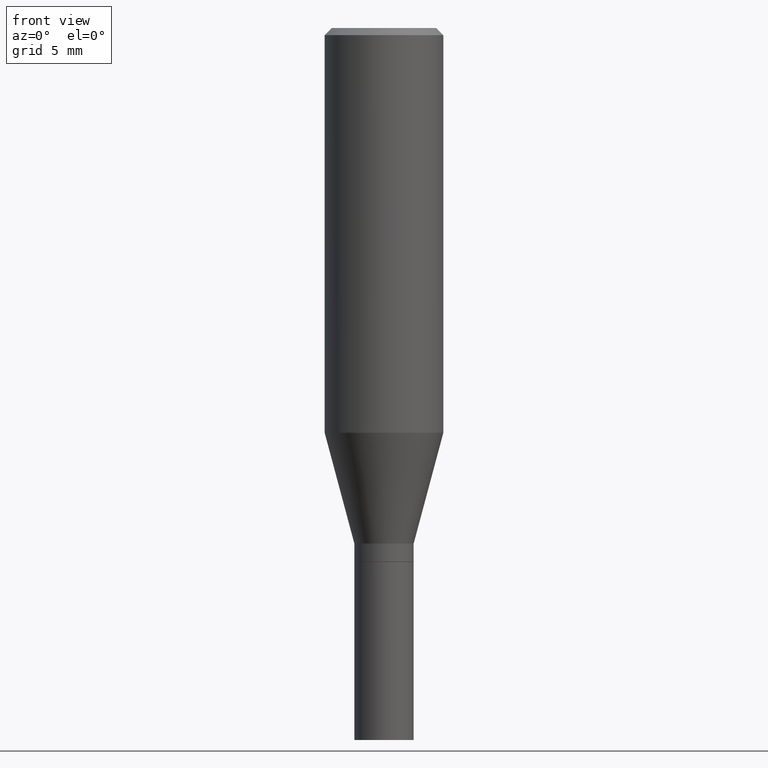
[diagram: clean part render]
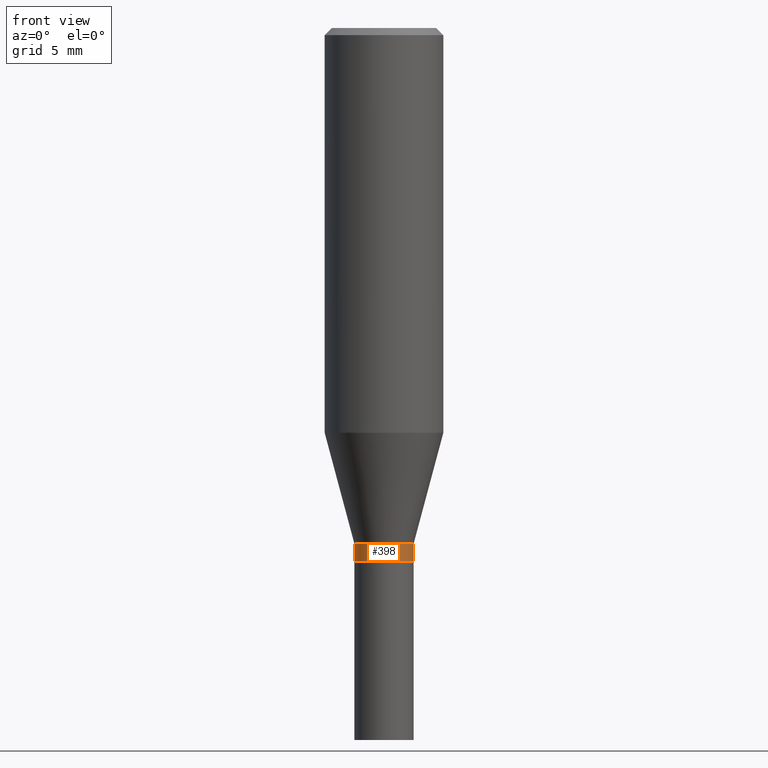
[diagram: same view with one face highlighted and labeled with its STEP entity id]
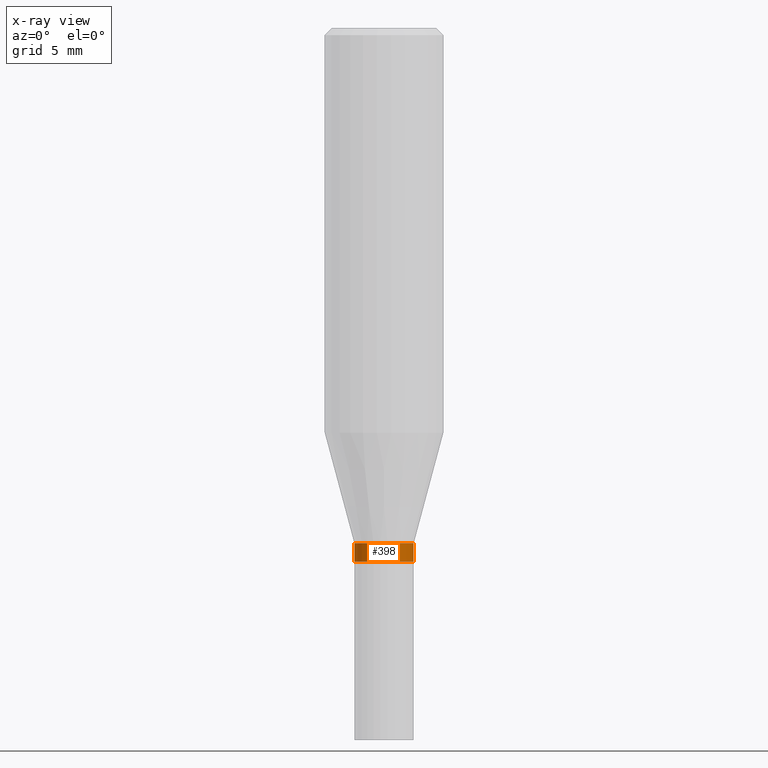
[diagram: x-ray of the same camera — body ghosted, the highlighted face saturated]
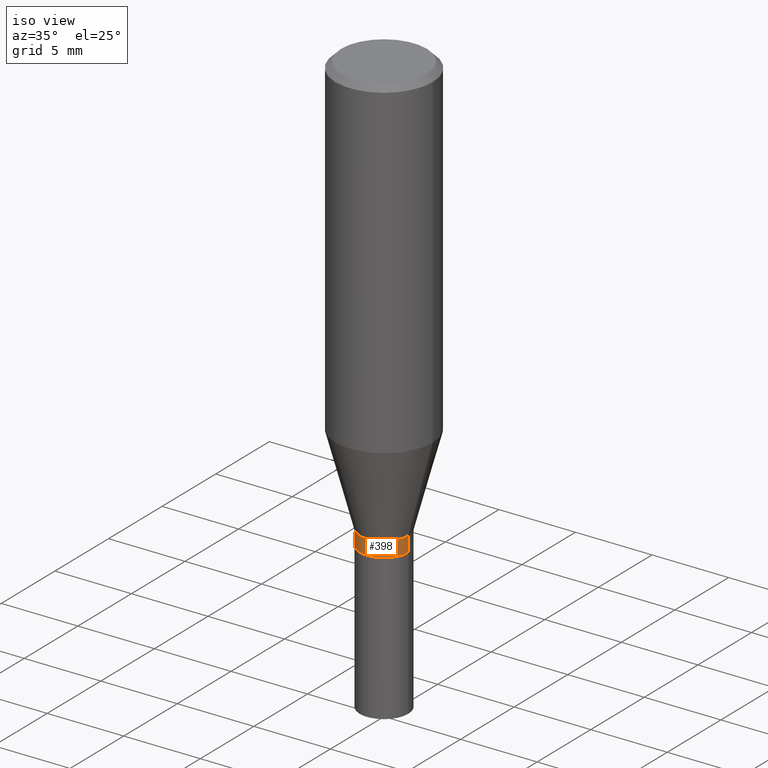
[diagram: same view with one face highlighted and labeled with its STEP entity id]
A machine part, front view. The second image highlights one B-rep face of the part: STEP entity #398.
The next image is the same camera in x-ray: the body ghosted, the highlighted face saturated — about 0% of this face is hidden behind the body in this view.
A second angle (iso view) of the same face is appended — the face is thin or edge-on in the first view.
In plain terms, the highlighted cylindrical surface (edge-blend (fillet) strip) has radius 1.5875 mm, axis along (-0, 0, 1).
Its self-contained STEP definition (entity closure, byte-faithful):
#3 = CYLINDRICAL_SURFACE ( 'NONE', #325, 0.06250000000000005551 ) ;
#19 = CARTESIAN_POINT ( 'NONE',  ( 2.749929672555186430E-29, -3.926170765529117721E-15, -1.124500000000000055 ) ) ;
#26 = ORIENTED_EDGE ( 'NONE', *, *, #49, .T. ) ;
#45 = CARTESIAN_POINT ( 'NONE',  ( 0.06250000000000005551, -4.364351673553920638E-16, 3.047610484872462323E-30 ) ) ;
#47 = DIRECTION ( 'NONE',  ( 1.000000000000000000, -6.982962677686264344E-15, 0.000000000000000000 ) ) ;
#49 = EDGE_CURVE ( 'NONE', #386, #431, #218, .T. ) ;
#51 = CIRCLE ( 'NONE', #210, 0.06250000000000005551 ) ;
#58 = CARTESIAN_POINT ( 'NONE',  ( 2.655779123517058654E-29, -3.791748733983656424E-15, -1.086000000000000076 ) ) ;
#84 = DIRECTION ( 'NONE',  ( -2.445468806185136877E-29, 3.491481338843145188E-15, 1.000000000000000000 ) ) ;
#113 = EDGE_LOOP ( 'NONE', ( #365, #184, #26, #384 ) ) ;
#130 = DIRECTION ( 'NONE',  ( 1.000000000000000000, -6.982962677686266711E-15, 4.876176775795935232E-29 ) ) ;
#146 = CARTESIAN_POINT ( 'NONE',  ( 0.000000000000000000, 0.000000000000000000, 0.000000000000000000 ) ) ;
#153 = CARTESIAN_POINT ( 'NONE',  ( 0.06250000000000005551, -4.362605932884510179E-15, -1.124500000000000055 ) ) ;
#157 = CARTESIAN_POINT ( 'NONE',  ( -0.06250000000000005551, -2.718415364513525405E-15, -1.086000000000000076 ) ) ;
#181 = DIRECTION ( 'NONE',  ( -2.445468806185136877E-29, 3.491481338843145188E-15, 1.000000000000000000 ) ) ;
#183 = EDGE_CURVE ( 'NONE', #226, #386, #51, .T. ) ;
#184 = ORIENTED_EDGE ( 'NONE', *, *, #183, .T. ) ;
#189 = LINE ( 'NONE', #383, #239 ) ;
#197 = VECTOR ( 'NONE', #181, 39.37007874015748143 ) ;
#209 = DIRECTION ( 'NONE',  ( -2.445468806185136597E-29, 3.491481338843145583E-15, 1.000000000000000000 ) ) ;
#210 = AXIS2_PLACEMENT_3D ( 'NONE', #19, #458, #47 ) ;
#218 = LINE ( 'NONE', #45, #197 ) ;
#226 = VERTEX_POINT ( 'NONE', #321 ) ;
#239 = VECTOR ( 'NONE', #84, 39.37007874015748143 ) ;
#241 = AXIS2_PLACEMENT_3D ( 'NONE', #58, #209, #367 ) ;
#272 = VERTEX_POINT ( 'NONE', #157 ) ;
#287 = CARTESIAN_POINT ( 'NONE',  ( 0.06250000000000005551, -4.228183901339048093E-15, -1.086000000000000076 ) ) ;
#297 = CIRCLE ( 'NONE', #241, 0.06250000000000005551 ) ;
#320 = EDGE_CURVE ( 'NONE', #226, #272, #189, .T. ) ;
#321 = CARTESIAN_POINT ( 'NONE',  ( -0.06250000000000005551, -3.482081555679054710E-15, -1.124500000000000055 ) ) ;
#325 = AXIS2_PLACEMENT_3D ( 'NONE', #146, #442, #130 ) ;
#341 = FACE_OUTER_BOUND ( 'NONE', #113, .T. ) ;
#365 = ORIENTED_EDGE ( 'NONE', *, *, #320, .F. ) ;
#367 = DIRECTION ( 'NONE',  ( 1.000000000000000000, -6.982962677686264344E-15, 0.000000000000000000 ) ) ;
#383 = CARTESIAN_POINT ( 'NONE',  ( -0.06250000000000005551, 4.440892098500630106E-16, -3.074334431409318916E-30 ) ) ;
#384 = ORIENTED_EDGE ( 'NONE', *, *, #455, .F. ) ;
#386 = VERTEX_POINT ( 'NONE', #153 ) ;
#398 = ADVANCED_FACE ( 'NONE', ( #341 ), #3, .T. ) ;
#431 = VERTEX_POINT ( 'NONE', #287 ) ;
#442 = DIRECTION ( 'NONE',  ( -2.445468806185136597E-29, 3.491481338843145583E-15, 1.000000000000000000 ) ) ;
#455 = EDGE_CURVE ( 'NONE', #272, #431, #297, .T. ) ;
#458 = DIRECTION ( 'NONE',  ( -2.445468806185136597E-29, 3.491481338843145583E-15, 1.000000000000000000 ) ) ;